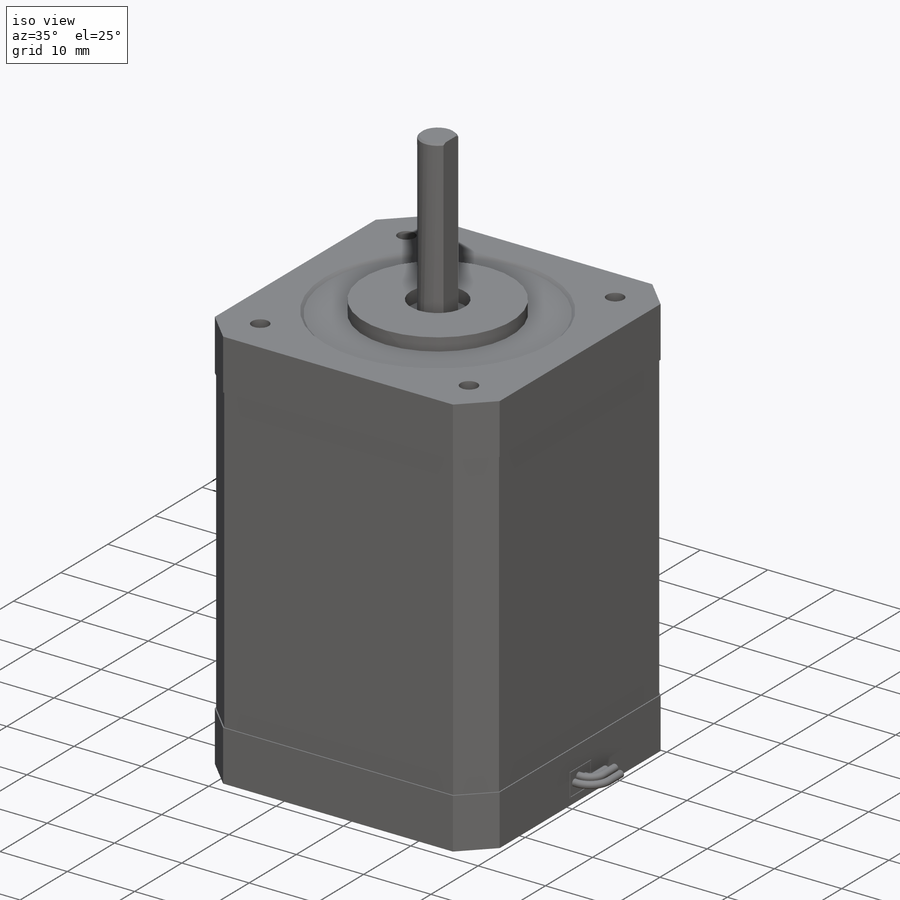
[diagram: iso view]
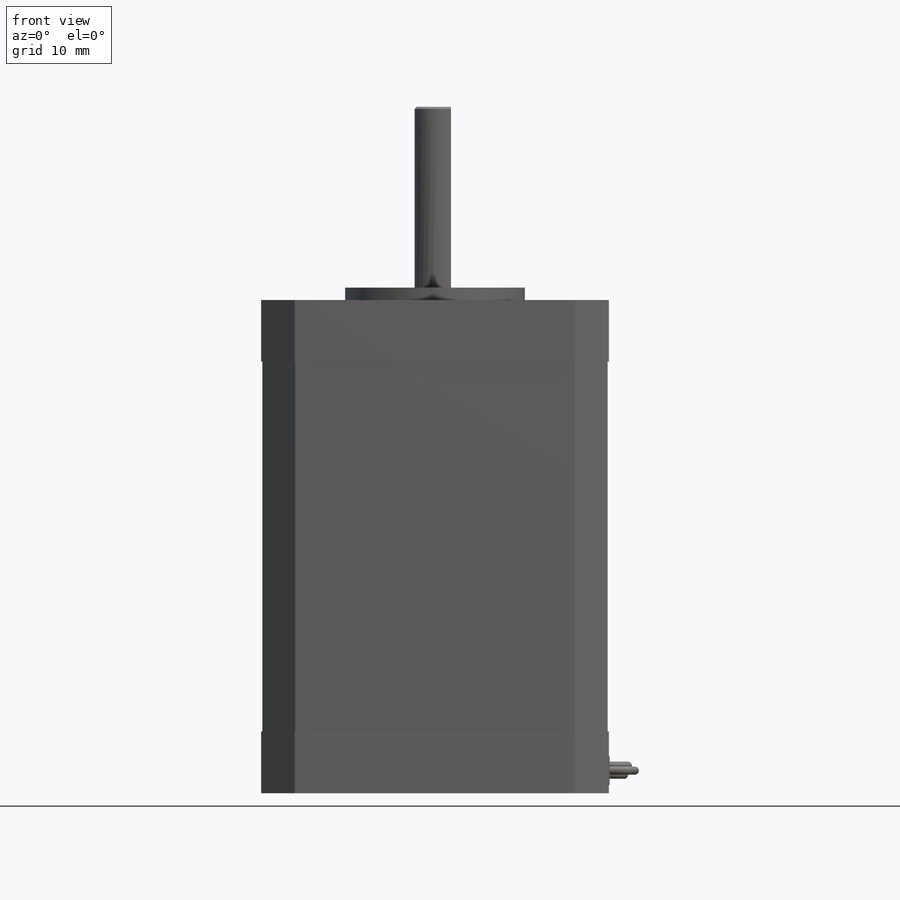
[diagram: front view]
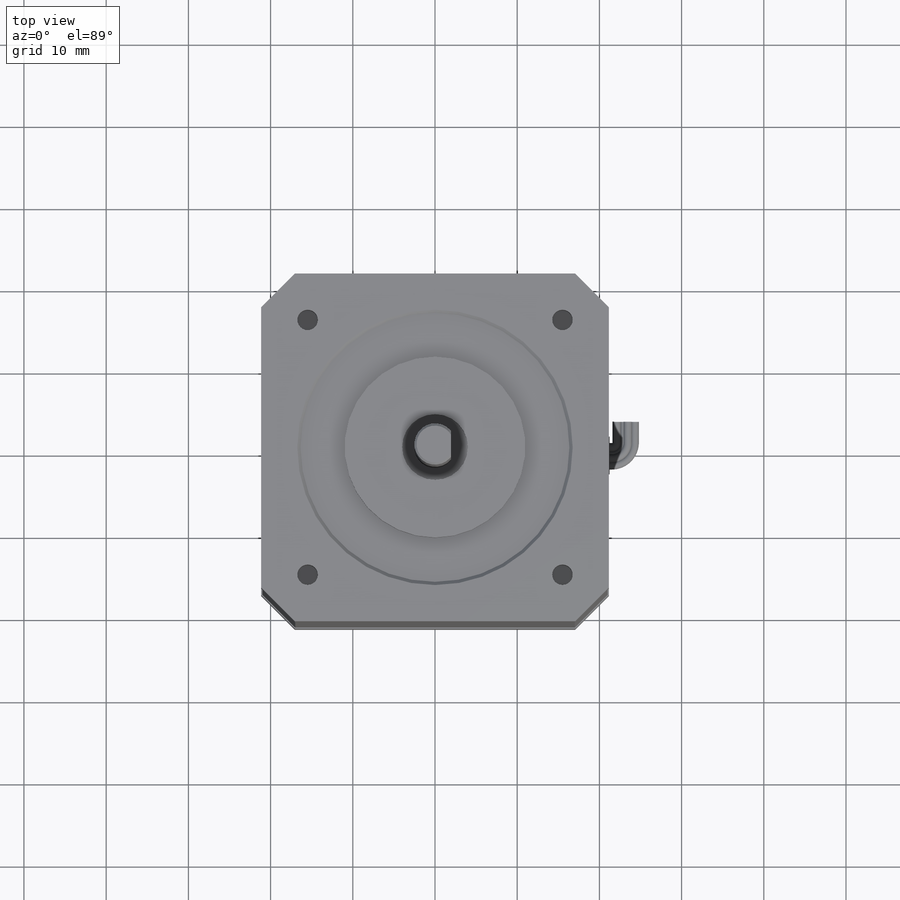
[diagram: top view]
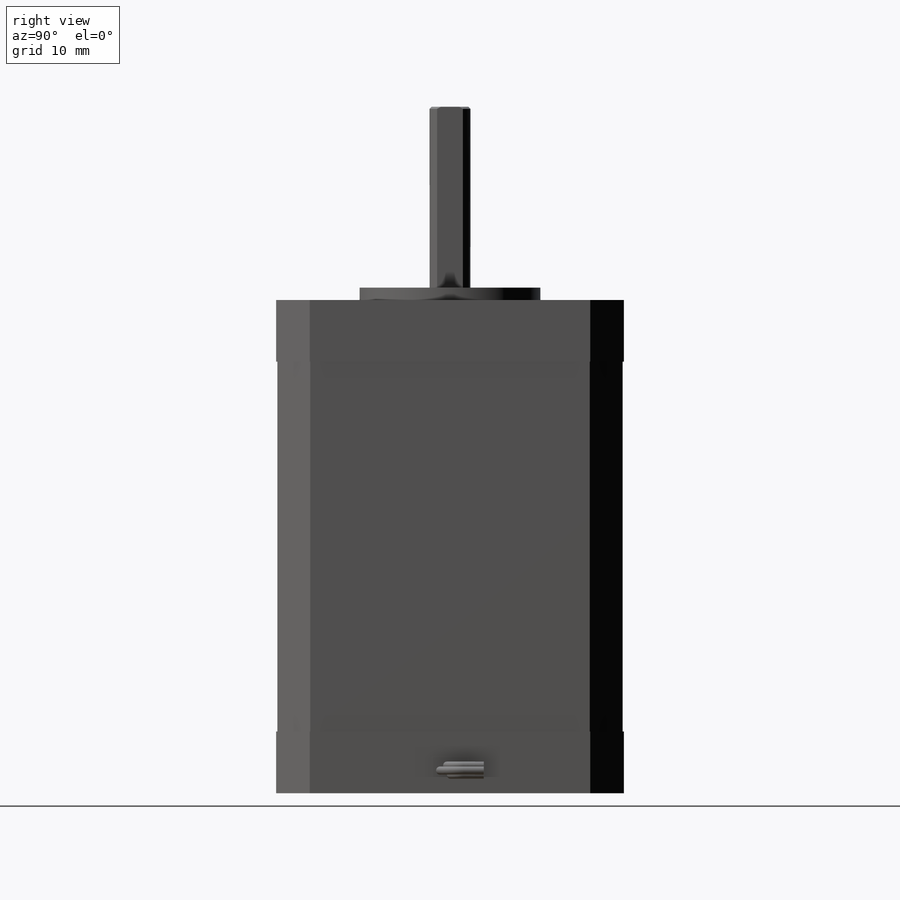
[diagram: right view]
SOLIDWORKS PART (.sldprt)
format: sldprt  version: not decoded by parser v0  size: 1,396,736 bytes
history: native  units: mm
features: sketch x39, plane x13, extrude x8, sweep x8, thread x6, move_body x6, chamfer x3, cut_extrude x3, mirror x3, material x1, delete_body x1 + 2 further entries (+20 scaffold rows collapsed; 7 parser-record rows omitted)
feature tree (120):
  scaffold x20  (default folders/planes/origin — collapsed)
  material  "acero"
  plane  "Alzado"
  plane  "Planta"
  plane  "Vista lateral"
  sketch  "Croquis1"  dims[D1=42.0mm]
  extrude  "Saliente-Extruir1"  Depth=60mm
  chamfer  "Chaflán1"  Distance=4mm Angle=45deg
  sketch  "Croquis3"  dims[D1=32.5mm]
  cut_extrude  "Cortar-Extruir1"  Depth=0.4mm
  plane  "Plano1"  Offset=61.5mm
  sketch  "Croquis4"  dims[D1=22.0mm D2=8.0mm]
  extrude  "Saliente-Extruir2"  [1 undecoded]
  chamfer  "Chaflán2"  Distance=0.5mm Angle=45deg
  sketch  "Croquis5"  dims[D1=5.0mm]
  extrude  "Saliente-Extruir3"  Depth=22mm
  sketch  "Croquis6"  dims[D1=4.45mm]
  cut_extrude  "Cortar-Extruir2"  [1 undecoded]
  chamfer  "Chaflán3"  Distance=0.25mm Angle=45deg
  sketch  "Croquis12"  dims[D1=0.15mm]
  extrude  "Saliente-Extruir9"  Depth=7.5mm
  sketch  "Croquis13"
  extrude  "Saliente-Extruir10"  Depth=7.5mm
  sketch  "Croquis7"  dims[D1=2.5mm D2=31.0mm]
  cut_extrude  "Cortar-Extruir3"  [1 undecoded]
  thread  "Rosca cosmética2"  Diameter=4.5mm  [1 undecoded]
  thread  "Rosca cosmética3"  Diameter=4.5mm  [1 undecoded]
  thread  "Rosca cosmética4"  Diameter=4.5mm  [1 undecoded]
  thread  "Rosca cosmética5"  Diameter=4.5mm  [1 undecoded]
  thread  "Rosca cosmética6"  Diameter=4.5mm  [1 undecoded]
  thread  "Rosca cosmética7"  Diameter=4.5mm  [1 undecoded]
  sketch  "Croquis10"  dims[D1=1.0mm D2=4.5mm D3=3.5mm D4=0.15mm]
  extrude  "Saliente-Extruir7"  Depth=0.1mm
  sketch  "Croquis11"  dims[c1.D1=1.0mm c1.D5=1.0mm c2.D1=~2.998735mm c3.D1=~33.684487deg c4.D1=~1.998735mm c4.D2=1.6mm c4.D3=0.65mm c4.D4=1.1mm c4.D5=1.0mm c5.D3=1.1mm c5.D6=2.2mm c5.D7=1.1mm c5.D8=~1.169542mm c5.D4=1.1mm c6.D3=0.6mm c6.D5=~1.026445mm c6.D4=1.1mm c7.D5=0.85mm c7.D8=0.9mm]
  plane  "Plano2"
  "PHR-6"
  parser-record x7  (decoder bookkeeping rows leaked as tree rows — omitted from the tree; the rows remain in map.json)
  move_body  "Sólido-Mover/Copiar4"
  move_body  "Distancia5"
  move_body  "Distancia6"
  sketch  "Croquis36"  dims[c1.D3=1.5mm c1.D1=1.75mm c1.D2=4.1mm c2.D1=2.0mm c2.D2=4.0mm]
  sweep  "Barrer2"
  sketch  "Croquis21"  dims[D1=3.5mm D2=2.3mm]
  plane  "Pla cable"
  sketch  "Croquis37"  dims[D2=100.0mm D1=15.0mm]
  plane  "Pla cable inclinat"
  sketch  "Croquis38"  dims[c1.D2=~3.968008mm c1.D1=6.0mm c2.D2=0.5mm]
  sketch  "Croquis3D11"
  sweep  "Barrer4"
  sketch  "Croquis23"  dims[D1=1.0mm]
  plane  "Pla simetria horitz connector"
  sketch  "Croquis39"  dims[D1=0.5mm D2=0.25mm D3=1.2mm]
  sweep  "Barrer5"
  sketch  "Croquis25"  dims[D1=1.0mm]
  sketch  "Croquis40"  dims[c1.D1=0.5mm c1.D2=1.5mm c1.D3=1.5mm c2.D1=0.5mm]
  sweep  "Barrer15"
  plane  "Pla simetria vert connector"
  mirror  "Simetría6"
  plane  "Pla de simetria"
  mirror  "Simetría4"
  delete_body  "Sólido-Eliminar1"
  "PHR-61"
  sketch  "Croquis26"
  move_body  "Distancia7"
  move_body  "Distancia8"
  move_body  "Distancia9"
  sketch  "Croquis8"  dims[D1=3.5mm D2=4.5mm D3=1.0mm D4=0.25mm]
  extrude  "Saliente-Extruir4"  Depth=0.1mm
  sketch  "Croquis9"  dims[D1=1.15mm]
  extrude  "Saliente-Extruir6"  Depth=15mm
  sketch  "Croquis18"  dims[D1=2.0mm]
  plane  "Plano3"
  sketch  "Croquis19"  dims[c1.D1=8.0mm c1.D2=8.0mm c1.D3=2.25mm c1.D4=1.1mm c2.D3=2.25mm c2.D4=5.25mm c2.D1=4.0mm]
  sketch  "Croquis3D1"  dims[c1.D1=2.5mm c2.D1=1.5mm]
  sketch  "Croquis3D2"  dims[c1.D1=4.0mm c1.D2=4.0mm c1.D3=~37.90018mm c2.D1=8.0mm c2.D4=8.0mm c3.D1=2.0mm c3.D3=2.0mm]
  sketch  "Croquis3D3"  dims[D1=1.5mm]
  sketch  "Croquis3D4"  dims[D2=1.5mm D1=0.55mm]
  sketch  "Croquis27"  dims[D1=3.5mm D2=2.0mm]
  sketch  "Croquis3D5"  dims[D4=4.0mm D5=4.0mm D1=8.0mm D2=8.0mm D3=~14.344075mm]
  sketch  "Croquis32"
  sketch  "Croquis3D9"  dims[D5=1.2mm D1=1.5mm D2=2.0mm D3=6.0mm D4=~4.213869mm D6=2.0mm]
  sweep  "Barrer11"
  sketch  "Croquis29"  dims[D1=1.0mm]
  sketch  "Croquis33"  dims[D1=3.5mm D2=1.8mm]
  sketch  "Croquis3D10"  dims[D1=6.0mm D2=3.0mm D3=2.0mm]
  sweep  "Barrer12"
  sketch  "Croquis30"  dims[D1=1.0mm]
  plane  "Plano6"
  sketch  "Croquis31"
  plane  "Plano7"
  sketch  "Croquis34"  dims[D1=0.5mm]
  sweep  "Barrer13"
  sketch  "Croquis35"  dims[D1=1.5mm]
  sweep  "Barrer14"
  mirror  "Simetría5"
decode coverage: 51 of 77 modeling features carry decoded parameters; 2 rows unclassified (native names shown)
note: ~ marks probable driven/reference dimensions
note: 9 parameter values undecoded
summary: profile_refs inferred from adjacent sketches, not decoded | no parameter record found for 3 features
note: suppression state not decoded; provenance and decode notes live in map.json
